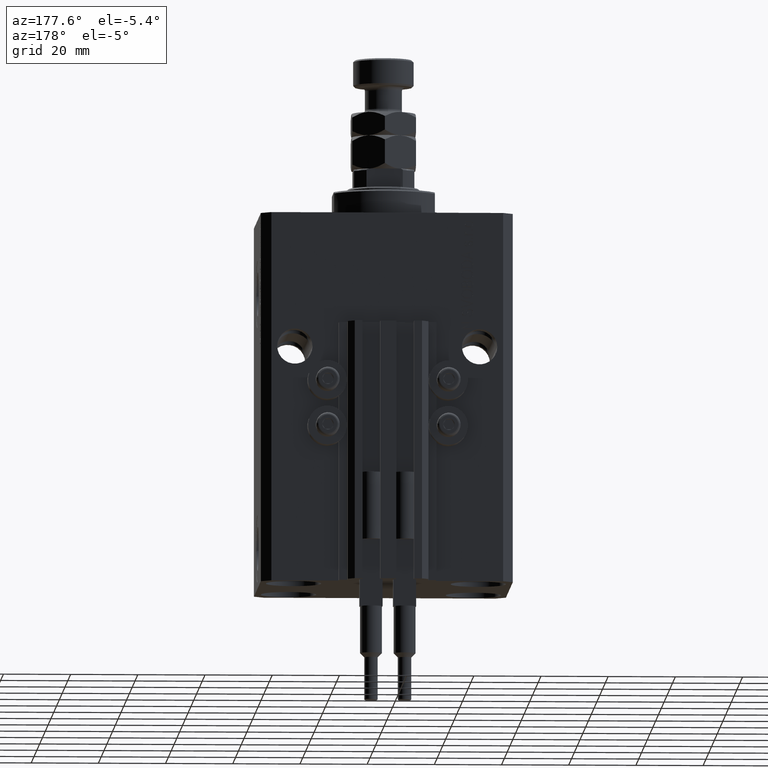
[diagram: clean part render]
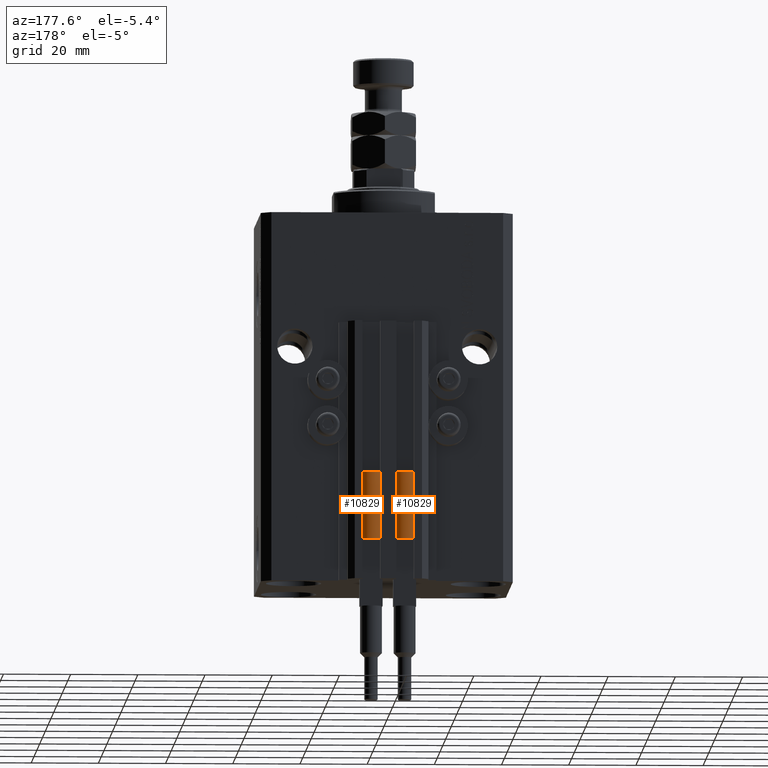
[diagram: same view with one multi-face feature highlighted, each face labeled with its STEP entity id]
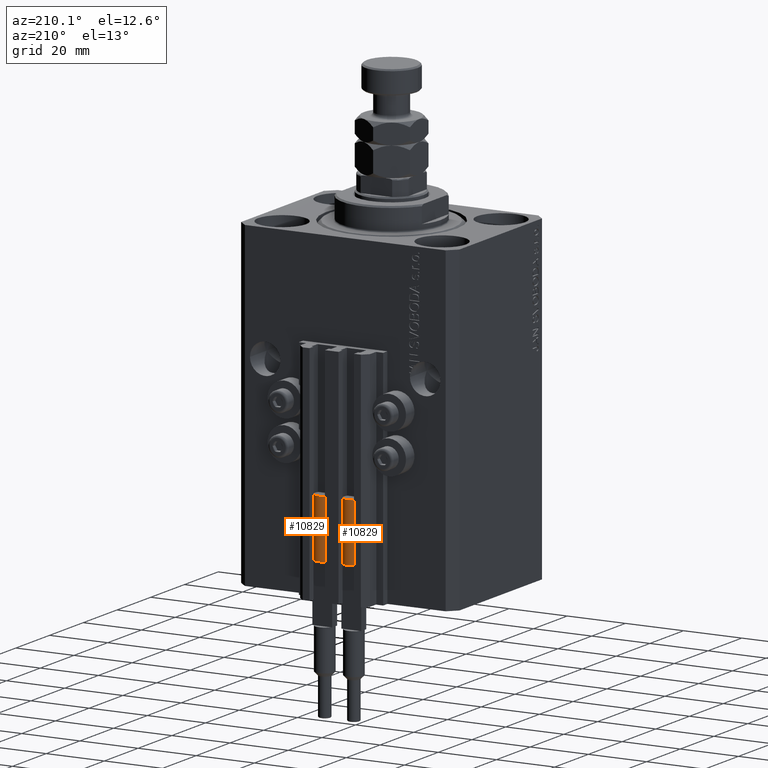
[diagram: same view with one multi-face feature highlighted, each face labeled with its STEP entity id]
A machine part, auxiliary view. The highlighted faces form ONE feature: a constant-radius fillet chain: 2 tangent blend faces with common blend radius 3.4 mm. The faces share edges in the B-rep.
A second angle (auxiliary view) of the same feature is appended — it is thin or edge-on in the first view.
Their STEP definitions:
[1] entity #10829 (Cylinder):
#910 = CIRCLE ( 'NONE', #7274, 3.400000000000000355 ) ;
#1972 = CARTESIAN_POINT ( 'NONE',  ( -3.051229260478471428, 1.500000000000000000, 20.00000000000000000 ) ) ;
#2370 = ORIENTED_EDGE ( 'NONE', *, *, #26047, .T. ) ;
#3433 = AXIS2_PLACEMENT_3D ( 'NONE', #37770, #3592, #18813 ) ;
#3592 = DIRECTION ( 'NONE',  ( 0.000000000000000000, 0.000000000000000000, 1.000000000000000000 ) ) ;
#4242 = VECTOR ( 'NONE', #38442, 1000.000000000000000 ) ;
#5422 = LINE ( 'NONE', #31642, #33766 ) ;
#7274 = AXIS2_PLACEMENT_3D ( 'NONE', #47498, #20339, #43018 ) ;
#7804 = DIRECTION ( 'NONE',  ( -1.000000000000000000, 0.000000000000000000, 0.000000000000000000 ) ) ;
#7913 = AXIS2_PLACEMENT_3D ( 'NONE', #18779, #10804, #7804 ) ;
#8771 = VERTEX_POINT ( 'NONE', #29899 ) ;
#10364 = VERTEX_POINT ( 'NONE', #30588 ) ;
#10528 = CARTESIAN_POINT ( 'NONE',  ( 0.000000000000000000, 0.000000000000000000, 20.00000000000000000 ) ) ;
#10804 = DIRECTION ( 'NONE',  ( -0.000000000000000000, -0.000000000000000000, -1.000000000000000000 ) ) ;
#10829 = ADVANCED_FACE ( 'NONE', ( #14792 ), #44953, .T. ) ;
#12156 = DIRECTION ( 'NONE',  ( 1.000000000000000000, 0.000000000000000000, 0.000000000000000000 ) ) ;
#12282 = ORIENTED_EDGE ( 'NONE', *, *, #30555, .T. ) ;
#12477 = AXIS2_PLACEMENT_3D ( 'NONE', #31138, #46311, #12156 ) ;
#14169 = EDGE_LOOP ( 'NONE', ( #23245, #12282, #2370, #26990, #41725, #32732 ) ) ;
#14388 = VERTEX_POINT ( 'NONE', #1972 ) ;
#14759 = DIRECTION ( 'NONE',  ( 0.000000000000000000, 0.000000000000000000, 1.000000000000000000 ) ) ;
#14792 = FACE_OUTER_BOUND ( 'NONE', #14169, .T. ) ;
#14860 = CIRCLE ( 'NONE', #12477, 3.400000000000000355 ) ;
#17308 = EDGE_CURVE ( 'NONE', #10364, #22029, #910, .T. ) ;
#18779 = CARTESIAN_POINT ( 'NONE',  ( 0.000000000000000000, 0.000000000000000000, 20.00000000000000000 ) ) ;
#18813 = DIRECTION ( 'NONE',  ( 1.000000000000000000, 0.000000000000000000, 0.000000000000000000 ) ) ;
#18852 = CARTESIAN_POINT ( 'NONE',  ( -3.399999999999999467, -4.915049848600952119E-16, 20.00000000000000000 ) ) ;
#19716 = CARTESIAN_POINT ( 'NONE',  ( -3.400000000000000355, 0.000000000000000000, 0.000000000000000000 ) ) ;
#20065 = CIRCLE ( 'NONE', #3433, 3.400000000000000355 ) ;
#20339 = DIRECTION ( 'NONE',  ( 0.000000000000000000, 0.000000000000000000, 1.000000000000000000 ) ) ;
#20875 = VERTEX_POINT ( 'NONE', #18852 ) ;
#21484 = EDGE_CURVE ( 'NONE', #20875, #47802, #5422, .T. ) ;
#22029 = VERTEX_POINT ( 'NONE', #28565 ) ;
#23245 = ORIENTED_EDGE ( 'NONE', *, *, #17308, .F. ) ;
#26047 = EDGE_CURVE ( 'NONE', #8771, #47802, #20065, .T. ) ;
#26990 = ORIENTED_EDGE ( 'NONE', *, *, #21484, .F. ) ;
#28565 = CARTESIAN_POINT ( 'NONE',  ( 3.051229260478471428, 1.500000000000000000, 20.00000000000000000 ) ) ;
#29899 = CARTESIAN_POINT ( 'NONE',  ( 3.400000000000000355, 4.163799117101001052E-16, 0.000000000000000000 ) ) ;
#30555 = EDGE_CURVE ( 'NONE', #10364, #8771, #45659, .T. ) ;
#30588 = CARTESIAN_POINT ( 'NONE',  ( 3.400000000000000355, 0.000000000000000000, 20.00000000000000000 ) ) ;
#31138 = CARTESIAN_POINT ( 'NONE',  ( 0.000000000000000000, 0.000000000000000000, 20.00000000000000000 ) ) ;
#31642 = CARTESIAN_POINT ( 'NONE',  ( -3.400000000000000355, 0.000000000000000000, 20.00000000000000000 ) ) ;
#32732 = ORIENTED_EDGE ( 'NONE', *, *, #37167, .F. ) ;
#33766 = VECTOR ( 'NONE', #46816, 1000.000000000000000 ) ;
#37167 = EDGE_CURVE ( 'NONE', #22029, #14388, #49137, .T. ) ;
#37770 = CARTESIAN_POINT ( 'NONE',  ( 0.000000000000000000, 0.000000000000000000, 0.000000000000000000 ) ) ;
#38442 = DIRECTION ( 'NONE',  ( -0.000000000000000000, -0.000000000000000000, -1.000000000000000000 ) ) ;
#38684 = CARTESIAN_POINT ( 'NONE',  ( 3.400000000000000355, 4.163799117101001052E-16, 20.00000000000000000 ) ) ;
#38793 = AXIS2_PLACEMENT_3D ( 'NONE', #10528, #14759, #45166 ) ;
#40200 = EDGE_CURVE ( 'NONE', #14388, #20875, #14860, .T. ) ;
#41725 = ORIENTED_EDGE ( 'NONE', *, *, #40200, .F. ) ;
#43018 = DIRECTION ( 'NONE',  ( 1.000000000000000000, 0.000000000000000000, 0.000000000000000000 ) ) ;
#44953 = CYLINDRICAL_SURFACE ( 'NONE', #7913, 3.400000000000000355 ) ;
#45166 = DIRECTION ( 'NONE',  ( 1.000000000000000000, 0.000000000000000000, 0.000000000000000000 ) ) ;
#45659 = LINE ( 'NONE', #38684, #4242 ) ;
#46311 = DIRECTION ( 'NONE',  ( 0.000000000000000000, 0.000000000000000000, 1.000000000000000000 ) ) ;
#46816 = DIRECTION ( 'NONE',  ( -0.000000000000000000, -0.000000000000000000, -1.000000000000000000 ) ) ;
#47498 = CARTESIAN_POINT ( 'NONE',  ( 0.000000000000000000, 0.000000000000000000, 20.00000000000000000 ) ) ;
#47802 = VERTEX_POINT ( 'NONE', #19716 ) ;
#49137 = CIRCLE ( 'NONE', #38793, 3.400000000000000355 ) ;
[2] entity #10829 (Cylinder):
#910 = CIRCLE ( 'NONE', #7274, 3.400000000000000355 ) ;
#1972 = CARTESIAN_POINT ( 'NONE',  ( -3.051229260478471428, 1.500000000000000000, 20.00000000000000000 ) ) ;
#2370 = ORIENTED_EDGE ( 'NONE', *, *, #26047, .T. ) ;
#3433 = AXIS2_PLACEMENT_3D ( 'NONE', #37770, #3592, #18813 ) ;
#3592 = DIRECTION ( 'NONE',  ( 0.000000000000000000, 0.000000000000000000, 1.000000000000000000 ) ) ;
#4242 = VECTOR ( 'NONE', #38442, 1000.000000000000000 ) ;
#5422 = LINE ( 'NONE', #31642, #33766 ) ;
#7274 = AXIS2_PLACEMENT_3D ( 'NONE', #47498, #20339, #43018 ) ;
#7804 = DIRECTION ( 'NONE',  ( -1.000000000000000000, 0.000000000000000000, 0.000000000000000000 ) ) ;
#7913 = AXIS2_PLACEMENT_3D ( 'NONE', #18779, #10804, #7804 ) ;
#8771 = VERTEX_POINT ( 'NONE', #29899 ) ;
#10364 = VERTEX_POINT ( 'NONE', #30588 ) ;
#10528 = CARTESIAN_POINT ( 'NONE',  ( 0.000000000000000000, 0.000000000000000000, 20.00000000000000000 ) ) ;
#10804 = DIRECTION ( 'NONE',  ( -0.000000000000000000, -0.000000000000000000, -1.000000000000000000 ) ) ;
#10829 = ADVANCED_FACE ( 'NONE', ( #14792 ), #44953, .T. ) ;
#12156 = DIRECTION ( 'NONE',  ( 1.000000000000000000, 0.000000000000000000, 0.000000000000000000 ) ) ;
#12282 = ORIENTED_EDGE ( 'NONE', *, *, #30555, .T. ) ;
#12477 = AXIS2_PLACEMENT_3D ( 'NONE', #31138, #46311, #12156 ) ;
#14169 = EDGE_LOOP ( 'NONE', ( #23245, #12282, #2370, #26990, #41725, #32732 ) ) ;
#14388 = VERTEX_POINT ( 'NONE', #1972 ) ;
#14759 = DIRECTION ( 'NONE',  ( 0.000000000000000000, 0.000000000000000000, 1.000000000000000000 ) ) ;
#14792 = FACE_OUTER_BOUND ( 'NONE', #14169, .T. ) ;
#14860 = CIRCLE ( 'NONE', #12477, 3.400000000000000355 ) ;
#17308 = EDGE_CURVE ( 'NONE', #10364, #22029, #910, .T. ) ;
#18779 = CARTESIAN_POINT ( 'NONE',  ( 0.000000000000000000, 0.000000000000000000, 20.00000000000000000 ) ) ;
#18813 = DIRECTION ( 'NONE',  ( 1.000000000000000000, 0.000000000000000000, 0.000000000000000000 ) ) ;
#18852 = CARTESIAN_POINT ( 'NONE',  ( -3.399999999999999467, -4.915049848600952119E-16, 20.00000000000000000 ) ) ;
#19716 = CARTESIAN_POINT ( 'NONE',  ( -3.400000000000000355, 0.000000000000000000, 0.000000000000000000 ) ) ;
#20065 = CIRCLE ( 'NONE', #3433, 3.400000000000000355 ) ;
#20339 = DIRECTION ( 'NONE',  ( 0.000000000000000000, 0.000000000000000000, 1.000000000000000000 ) ) ;
#20875 = VERTEX_POINT ( 'NONE', #18852 ) ;
#21484 = EDGE_CURVE ( 'NONE', #20875, #47802, #5422, .T. ) ;
#22029 = VERTEX_POINT ( 'NONE', #28565 ) ;
#23245 = ORIENTED_EDGE ( 'NONE', *, *, #17308, .F. ) ;
#26047 = EDGE_CURVE ( 'NONE', #8771, #47802, #20065, .T. ) ;
#26990 = ORIENTED_EDGE ( 'NONE', *, *, #21484, .F. ) ;
#28565 = CARTESIAN_POINT ( 'NONE',  ( 3.051229260478471428, 1.500000000000000000, 20.00000000000000000 ) ) ;
#29899 = CARTESIAN_POINT ( 'NONE',  ( 3.400000000000000355, 4.163799117101001052E-16, 0.000000000000000000 ) ) ;
#30555 = EDGE_CURVE ( 'NONE', #10364, #8771, #45659, .T. ) ;
#30588 = CARTESIAN_POINT ( 'NONE',  ( 3.400000000000000355, 0.000000000000000000, 20.00000000000000000 ) ) ;
#31138 = CARTESIAN_POINT ( 'NONE',  ( 0.000000000000000000, 0.000000000000000000, 20.00000000000000000 ) ) ;
#31642 = CARTESIAN_POINT ( 'NONE',  ( -3.400000000000000355, 0.000000000000000000, 20.00000000000000000 ) ) ;
#32732 = ORIENTED_EDGE ( 'NONE', *, *, #37167, .F. ) ;
#33766 = VECTOR ( 'NONE', #46816, 1000.000000000000000 ) ;
#37167 = EDGE_CURVE ( 'NONE', #22029, #14388, #49137, .T. ) ;
#37770 = CARTESIAN_POINT ( 'NONE',  ( 0.000000000000000000, 0.000000000000000000, 0.000000000000000000 ) ) ;
#38442 = DIRECTION ( 'NONE',  ( -0.000000000000000000, -0.000000000000000000, -1.000000000000000000 ) ) ;
#38684 = CARTESIAN_POINT ( 'NONE',  ( 3.400000000000000355, 4.163799117101001052E-16, 20.00000000000000000 ) ) ;
#38793 = AXIS2_PLACEMENT_3D ( 'NONE', #10528, #14759, #45166 ) ;
#40200 = EDGE_CURVE ( 'NONE', #14388, #20875, #14860, .T. ) ;
#41725 = ORIENTED_EDGE ( 'NONE', *, *, #40200, .F. ) ;
#43018 = DIRECTION ( 'NONE',  ( 1.000000000000000000, 0.000000000000000000, 0.000000000000000000 ) ) ;
#44953 = CYLINDRICAL_SURFACE ( 'NONE', #7913, 3.400000000000000355 ) ;
#45166 = DIRECTION ( 'NONE',  ( 1.000000000000000000, 0.000000000000000000, 0.000000000000000000 ) ) ;
#45659 = LINE ( 'NONE', #38684, #4242 ) ;
#46311 = DIRECTION ( 'NONE',  ( 0.000000000000000000, 0.000000000000000000, 1.000000000000000000 ) ) ;
#46816 = DIRECTION ( 'NONE',  ( -0.000000000000000000, -0.000000000000000000, -1.000000000000000000 ) ) ;
#47498 = CARTESIAN_POINT ( 'NONE',  ( 0.000000000000000000, 0.000000000000000000, 20.00000000000000000 ) ) ;
#47802 = VERTEX_POINT ( 'NONE', #19716 ) ;
#49137 = CIRCLE ( 'NONE', #38793, 3.400000000000000355 ) ;